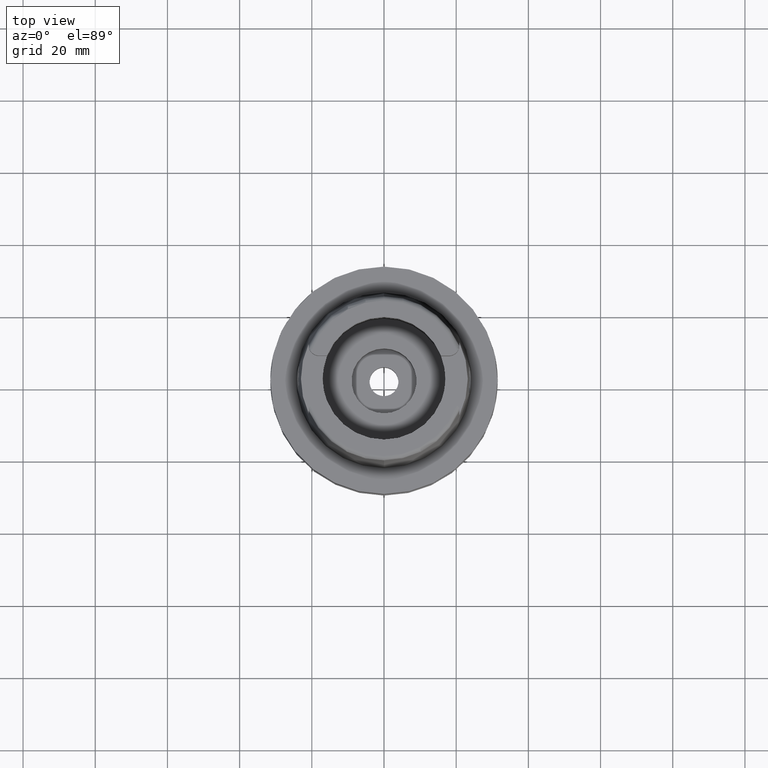
[diagram: clean part render]
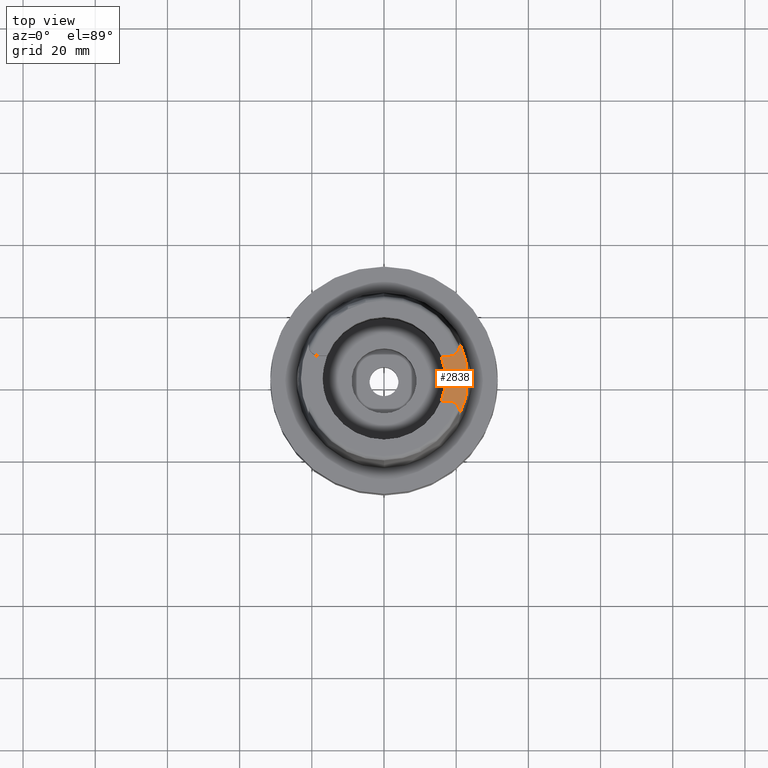
[diagram: same view with one face highlighted and labeled with its STEP entity id]
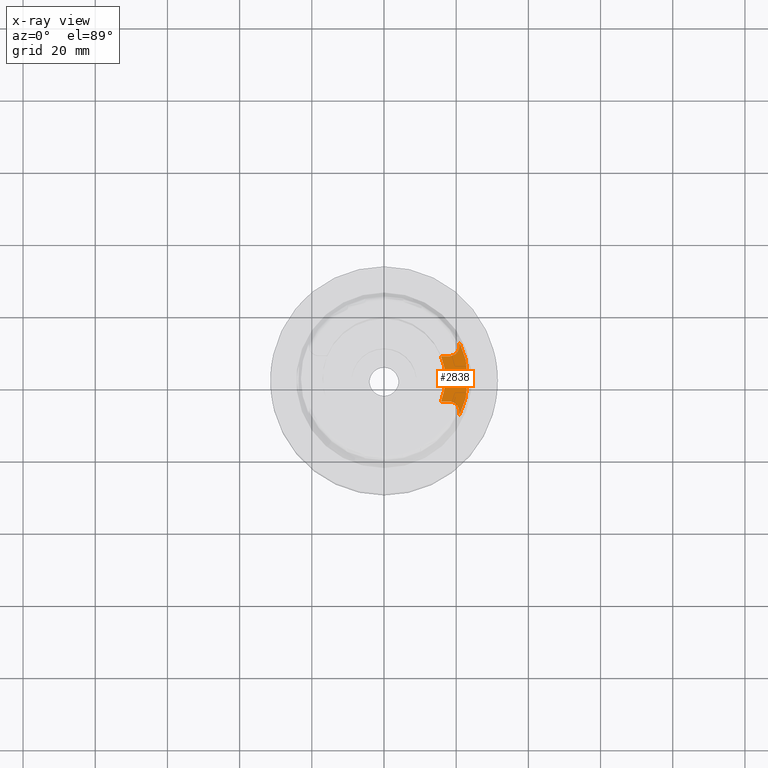
[diagram: x-ray of the same camera — body ghosted, the highlighted face saturated]
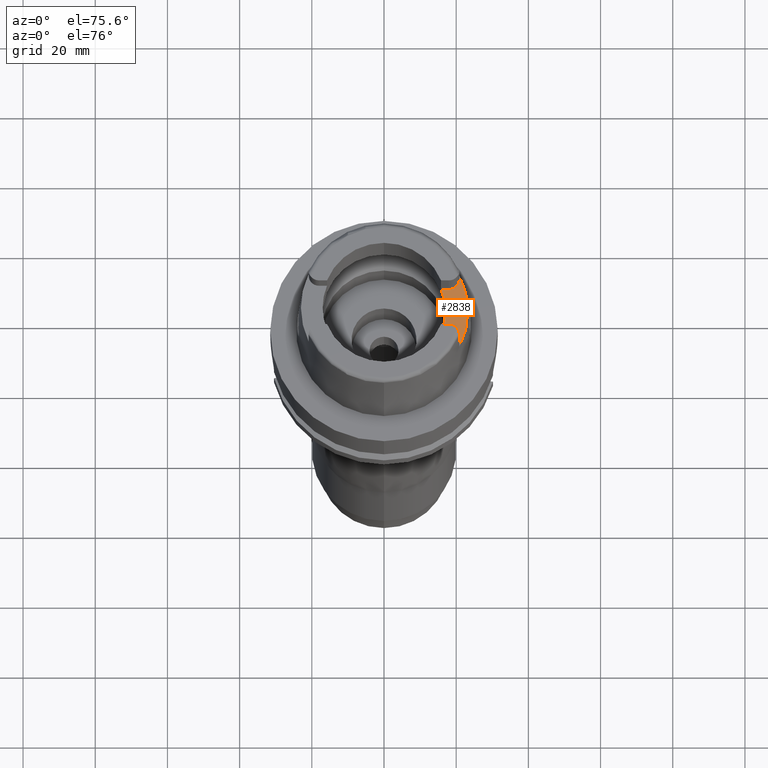
[diagram: same view with one face highlighted and labeled with its STEP entity id]
A machine part, top view. The second image highlights one B-rep face of the part: STEP entity #2838.
The next image is the same camera in x-ray: the body ghosted, the highlighted face saturated — about 0% of this face is hidden behind the body in this view.
A second angle (auxiliary view) of the same face is appended — the face is thin or edge-on in the first view.
In plain terms, the highlighted planar face has unit normal (0, 0, 1).
Its self-contained STEP definition (entity closure, byte-faithful):
#337=CARTESIAN_POINT('',(0.E0,0.E0,2.2E1));
#338=DIRECTION('',(0.E0,0.E0,1.E0));
#339=DIRECTION('',(9.294994374136E-1,-3.688235294118E-1,0.E0));
#340=AXIS2_PLACEMENT_3D('',#337,#338,#339);
#345=DIRECTION('',(1.E0,-8.522579531193E-14,0.E0));
#346=VECTOR('',#345,2.188509563969E0);
#347=CARTESIAN_POINT('',(1.580149043603E1,6.27E0,2.2E1));
#348=LINE('',#347,#346);
#352=CARTESIAN_POINT('',(1.799E1,9.15E0,2.2E1));
#353=DIRECTION('',(0.E0,0.E0,1.E0));
#354=DIRECTION('',(0.E0,-1.E0,0.E0));
#355=AXIS2_PLACEMENT_3D('',#352,#353,#354);
#360=DIRECTION('',(-3.871492741933E-6,9.999999999925E-1,-9.426637539046E-14));
#361=VECTOR('',#360,1.017576722668E0);
#362=CARTESIAN_POINT('',(2.087E1,9.15E0,2.2E1));
#363=LINE('',#362,#361);
#367=CARTESIAN_POINT('',(0.E0,0.E0,2.2E1));
#368=DIRECTION('',(0.E0,0.E0,-1.E0));
#369=DIRECTION('',(8.989877876695E-1,4.379736951247E-1,0.E0));
#370=AXIS2_PLACEMENT_3D('',#367,#368,#369);
#375=DIRECTION('',(-1.773956706265E-5,9.999999998427E-1,9.427574395919E-14));
#376=VECTOR('',#375,1.017475601881E0);
#377=CARTESIAN_POINT('',(2.087001804958E1,-1.016747560172E1,2.2E1));
#378=LINE('',#377,#376);
#382=CARTESIAN_POINT('',(1.799E1,-9.15E0,2.2E1));
#383=DIRECTION('',(0.E0,0.E0,1.E0));
#384=DIRECTION('',(1.E0,0.E0,0.E0));
#385=AXIS2_PLACEMENT_3D('',#382,#383,#384);
#390=DIRECTION('',(-1.E0,-8.806665515566E-14,0.E0));
#391=VECTOR('',#390,2.188509563969E0);
#392=CARTESIAN_POINT('',(1.799E1,-6.27E0,2.2E1));
#393=LINE('',#392,#391);
#2340=CARTESIAN_POINT('',(2.087E1,1.016755860605E1,2.2E1));
#2341=CARTESIAN_POINT('',(2.087E1,-1.016755860605E1,2.2E1));
#2342=VERTEX_POINT('',#2340);
#2343=VERTEX_POINT('',#2341);
#2348=CARTESIAN_POINT('',(1.580149043603E1,-6.27E0,2.2E1));
#2349=CARTESIAN_POINT('',(1.580149043603E1,6.27E0,2.2E1));
#2350=VERTEX_POINT('',#2348);
#2351=VERTEX_POINT('',#2349);
#2352=CARTESIAN_POINT('',(1.799E1,6.27E0,2.2E1));
#2353=VERTEX_POINT('',#2352);
#2354=CARTESIAN_POINT('',(2.087E1,9.15E0,2.2E1));
#2355=VERTEX_POINT('',#2354);
#2356=CARTESIAN_POINT('',(2.087E1,-9.15E0,2.2E1));
#2357=VERTEX_POINT('',#2356);
#2358=CARTESIAN_POINT('',(1.799E1,-6.27E0,2.2E1));
#2359=VERTEX_POINT('',#2358);
#2818=CARTESIAN_POINT('',(0.E0,0.E0,2.2E1));
#2819=DIRECTION('',(0.E0,0.E0,1.E0));
#2820=DIRECTION('',(1.E0,0.E0,0.E0));
#2821=AXIS2_PLACEMENT_3D('',#2818,#2819,#2820);
#2822=PLANE('',#2821);
#2823=ORIENTED_EDGE('',*,*,#2803,.T.);
#2825=ORIENTED_EDGE('',*,*,#2824,.T.);
#2827=ORIENTED_EDGE('',*,*,#2826,.T.);
#2829=ORIENTED_EDGE('',*,*,#2828,.T.);
#2831=ORIENTED_EDGE('',*,*,#2830,.T.);
#2833=ORIENTED_EDGE('',*,*,#2832,.T.);
#2834=ORIENTED_EDGE('',*,*,#2774,.T.);
#2835=ORIENTED_EDGE('',*,*,#2792,.T.);
#2836=EDGE_LOOP('',(#2823,#2825,#2827,#2829,#2831,#2833,#2834,#2835));
#2837=FACE_OUTER_BOUND('',#2836,.F.);
#341=CIRCLE('',#340,1.7E1);
#356=CIRCLE('',#355,2.88E0);
#371=CIRCLE('',#370,2.321499834175E1);
#386=CIRCLE('',#385,2.88E0);
#2774=EDGE_CURVE('',#2357,#2359,#386,.T.);
#2792=EDGE_CURVE('',#2359,#2350,#393,.T.);
#2803=EDGE_CURVE('',#2350,#2351,#341,.T.);
#2824=EDGE_CURVE('',#2351,#2353,#348,.T.);
#2826=EDGE_CURVE('',#2353,#2355,#356,.T.);
#2828=EDGE_CURVE('',#2355,#2342,#363,.T.);
#2830=EDGE_CURVE('',#2342,#2343,#371,.T.);
#2832=EDGE_CURVE('',#2343,#2357,#378,.T.);
#2838=ADVANCED_FACE('',(#2837),#2822,.T.);